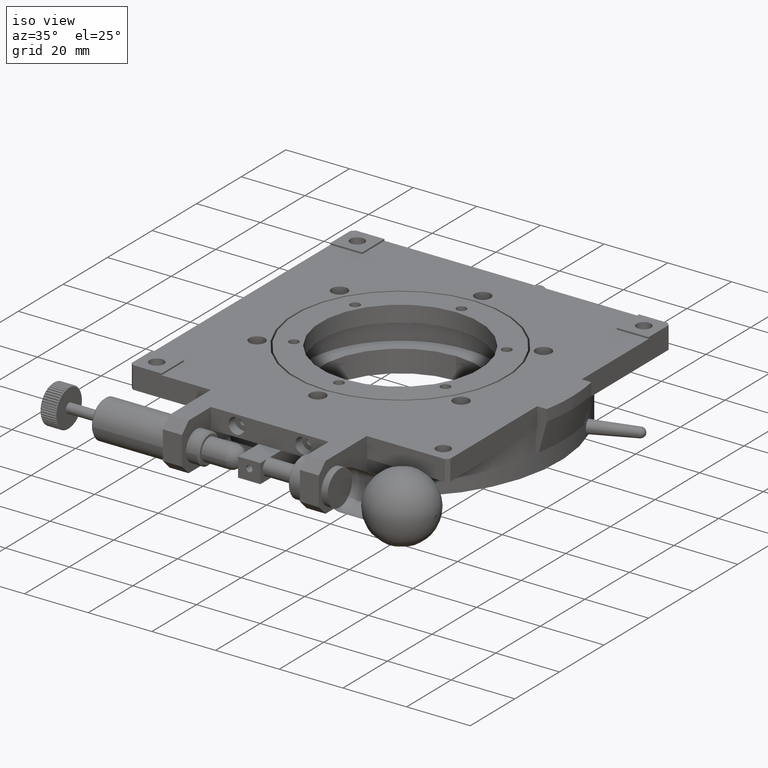
[diagram: clean part render]
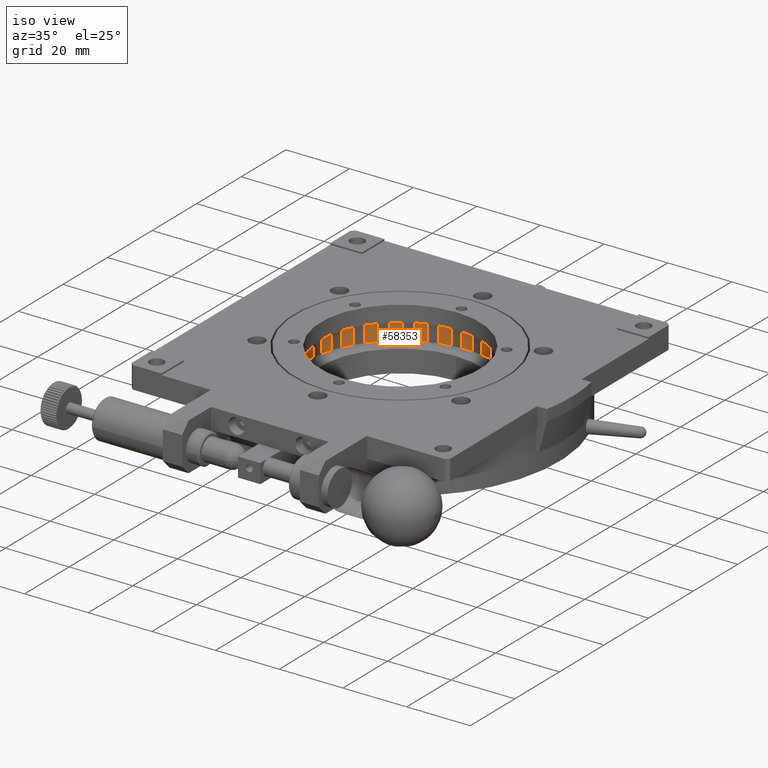
[diagram: same view with one face highlighted and labeled with its STEP entity id]
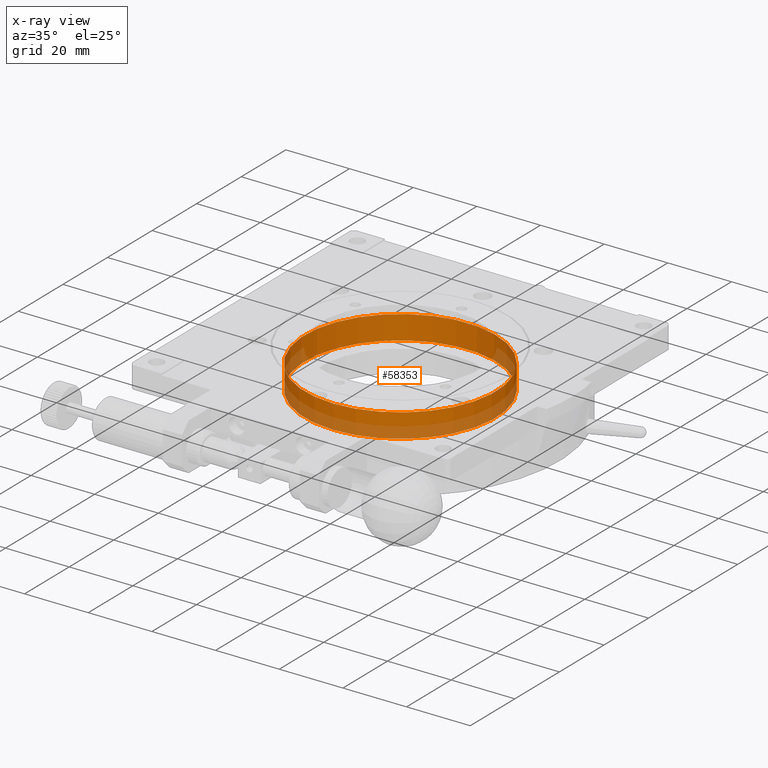
[diagram: x-ray of the same camera — body ghosted, the highlighted face saturated]
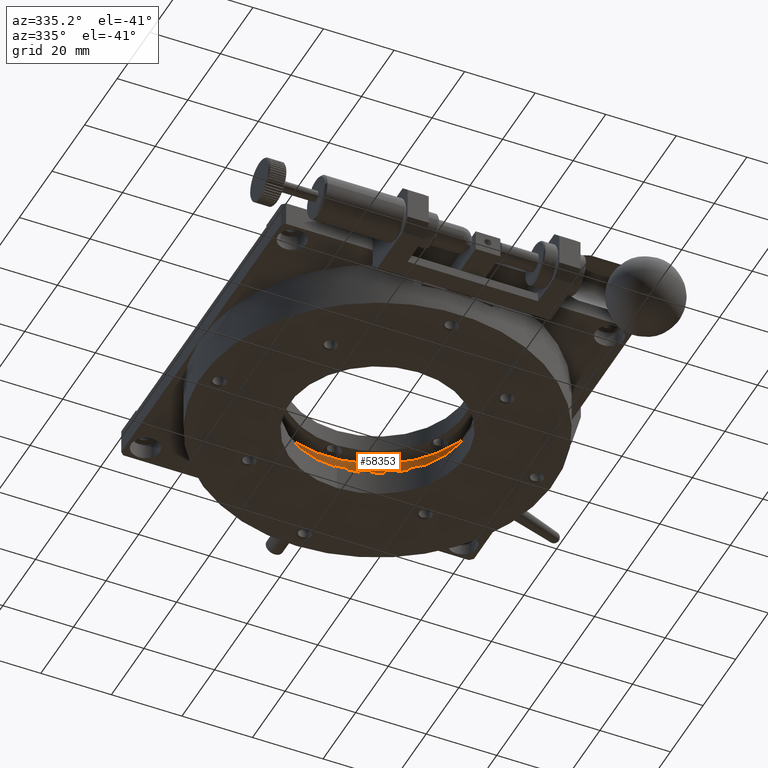
[diagram: same view with one face highlighted and labeled with its STEP entity id]
A machine part, iso view. The second image highlights one B-rep face of the part: STEP entity #58353.
The next image is the same camera in x-ray: the body ghosted, the highlighted face saturated — about 29% of this face is hidden behind the body in this view.
A second angle (auxiliary view) of the same face is appended — the face is thin or edge-on in the first view.
In plain terms, the highlighted cylindrical surface (bore or boss wall) has radius 30 mm, axis along (0, 0, 1).
Its self-contained STEP definition (entity closure, byte-faithful):
#298 = DIRECTION ( 'NONE',  ( 0.000000000000000000, -1.000000000000000000, 0.000000000000000000 ) ) ;
#9215 = CIRCLE ( 'NONE', #60637, 30.00000000000000000 ) ;
#15983 = VERTEX_POINT ( 'NONE', #24267 ) ;
#21716 = ORIENTED_EDGE ( 'NONE', *, *, #35620, .F. ) ;
#24267 = CARTESIAN_POINT ( 'NONE',  ( 0.000000000000000000, -30.00000000000000000, -12.50000000000000000 ) ) ;
#25254 = DIRECTION ( 'NONE',  ( 0.000000000000000000, 0.000000000000000000, 1.000000000000000000 ) ) ;
#27054 = VERTEX_POINT ( 'NONE', #81417 ) ;
#35620 = EDGE_CURVE ( 'NONE', #27054, #27054, #9215, .T. ) ;
#35955 = FACE_OUTER_BOUND ( 'NONE', #46764, .T. ) ;
#37295 = DIRECTION ( 'NONE',  ( 0.000000000000000000, -1.000000000000000000, 0.000000000000000000 ) ) ;
#46764 = EDGE_LOOP ( 'NONE', ( #21716 ) ) ;
#47578 = EDGE_LOOP ( 'NONE', ( #49618 ) ) ;
#49618 = ORIENTED_EDGE ( 'NONE', *, *, #63064, .F. ) ;
#52889 = AXIS2_PLACEMENT_3D ( 'NONE', #74955, #25254, #89243 ) ;
#56695 = CARTESIAN_POINT ( 'NONE',  ( 0.000000000000000000, 0.000000000000000000, -12.50000000000000000 ) ) ;
#58353 = ADVANCED_FACE ( 'NONE', ( #35955, #70518 ), #71883, .F. ) ;
#58811 = CIRCLE ( 'NONE', #52889, 30.00000000000000000 ) ;
#60637 = AXIS2_PLACEMENT_3D ( 'NONE', #77599, #86213, #298 ) ;
#63064 = EDGE_CURVE ( 'NONE', #15983, #15983, #58811, .T. ) ;
#63608 = DIRECTION ( 'NONE',  ( 0.000000000000000000, 0.000000000000000000, 1.000000000000000000 ) ) ;
#64411 = AXIS2_PLACEMENT_3D ( 'NONE', #56695, #63608, #37295 ) ;
#70518 = FACE_OUTER_BOUND ( 'NONE', #47578, .T. ) ;
#71883 = CYLINDRICAL_SURFACE ( 'NONE', #64411, 30.00000000000000000 ) ;
#74955 = CARTESIAN_POINT ( 'NONE',  ( 0.000000000000000000, 0.000000000000000000, -12.50000000000000000 ) ) ;
#77599 = CARTESIAN_POINT ( 'NONE',  ( 0.000000000000000000, 0.000000000000000000, -5.000000000000000000 ) ) ;
#81417 = CARTESIAN_POINT ( 'NONE',  ( 0.000000000000000000, -30.00000000000000000, -5.000000000000000000 ) ) ;
#86213 = DIRECTION ( 'NONE',  ( -0.000000000000000000, -0.000000000000000000, -1.000000000000000000 ) ) ;
#89243 = DIRECTION ( 'NONE',  ( 0.000000000000000000, -1.000000000000000000, 0.000000000000000000 ) ) ;